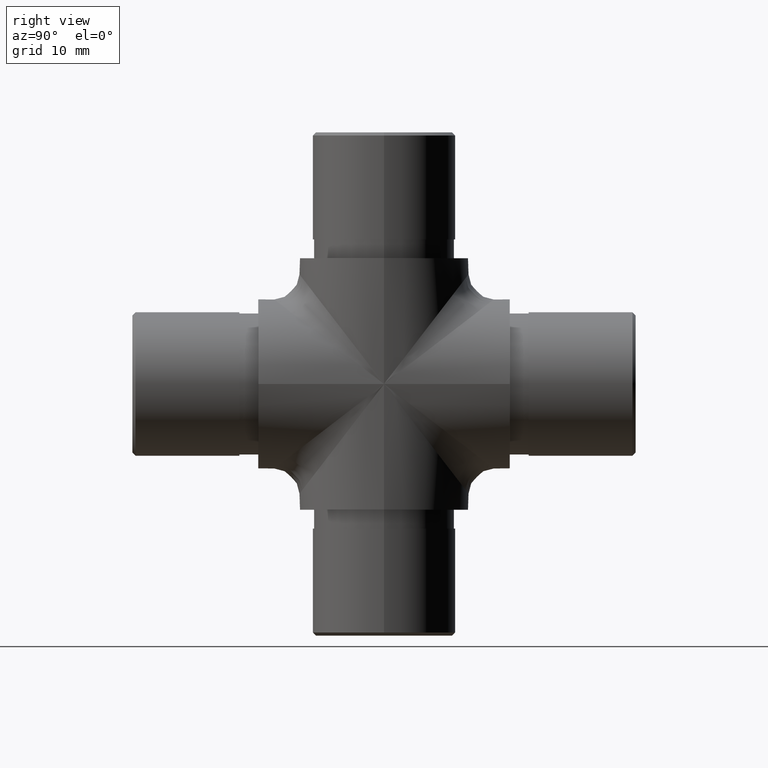
[diagram: clean part render]
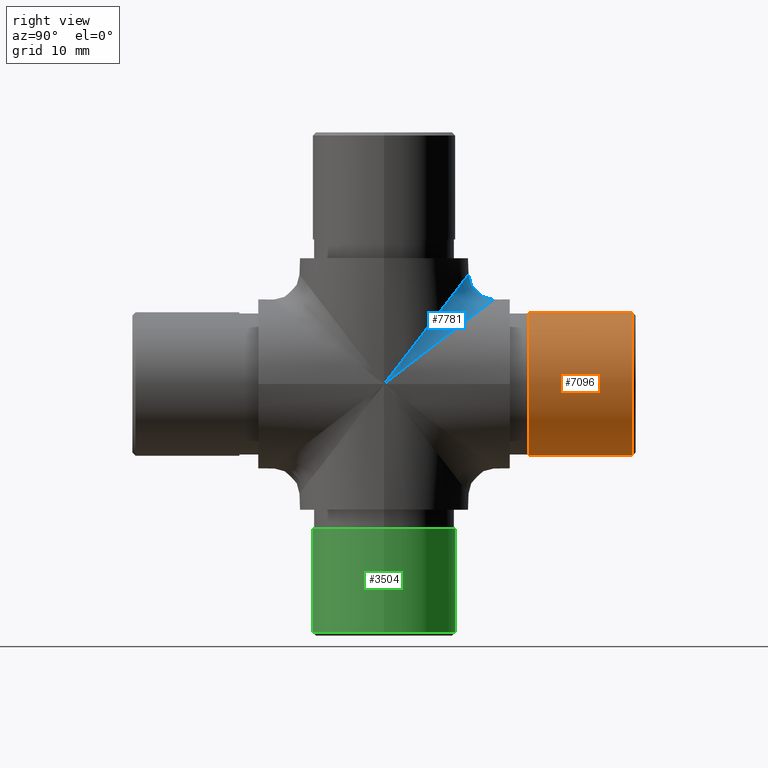
[diagram: same view with three faces highlighted in distinct colors, each labeled with its STEP entity id]
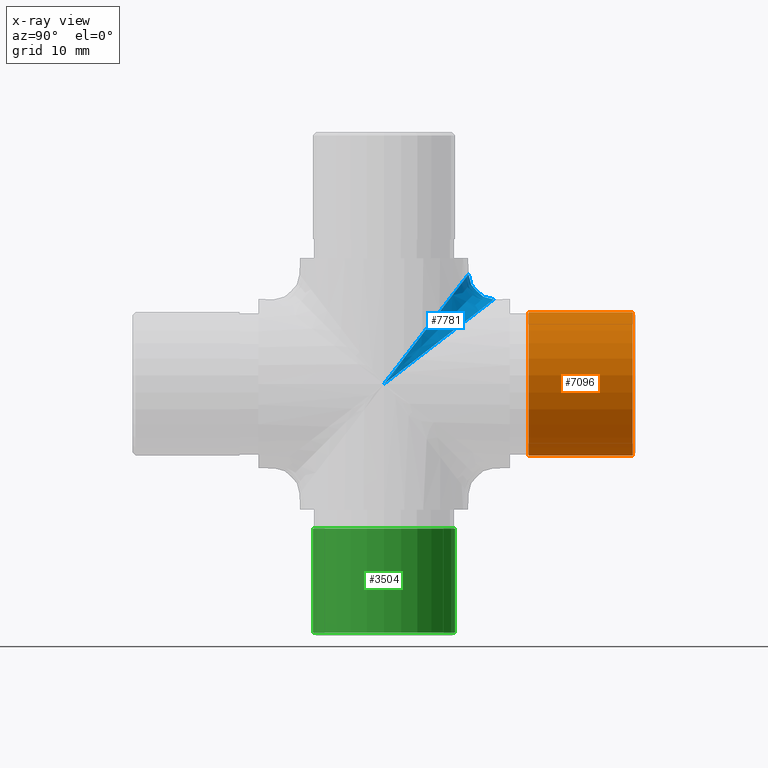
[diagram: x-ray of the same camera — body ghosted, the three highlighted faces saturated]
A machine part, right view with three faces highlighted in distinct colors.
The next image is the same camera in x-ray (body ghosted, the three faces saturated) — at least one of them is partly hidden behind the body in this view.
Their STEP definitions:

[orange] entity #7096 — the highlighted cylindrical surface (bore or boss wall) has radius 11.4 mm, axis along (-0, -1, -0).
#493 = VERTEX_POINT ( 'NONE', #5746 ) ;
#675 = CARTESIAN_POINT ( 'NONE',  ( 0.0000000000000000000, 23.00000000000000000, 11.40000000000000000 ) ) ;
#1347 = CARTESIAN_POINT ( 'NONE',  ( 0.0000000000000000000, 23.00000000000000000, 0.0000000000000000000 ) ) ;
#1759 = VERTEX_POINT ( 'NONE', #675 ) ;
#2105 = ORIENTED_EDGE ( 'NONE', *, *, #2292, .T. ) ;
#2292 = EDGE_CURVE ( 'NONE', #1759, #1759, #8737, .T. ) ;
#3370 = DIRECTION ( 'NONE',  ( 0.0000000000000000000, -1.000000000000000000, 0.0000000000000000000 ) ) ;
#3734 = CYLINDRICAL_SURFACE ( 'NONE', #9342, 11.40000000000000000 ) ;
#3977 = AXIS2_PLACEMENT_3D ( 'NONE', #6436, #3370, #10337 ) ;
#4054 = EDGE_CURVE ( 'NONE', #493, #493, #9999, .T. ) ;
#4604 = DIRECTION ( 'NONE',  ( 0.0000000000000000000, 1.000000000000000000, 0.0000000000000000000 ) ) ;
#5114 = DIRECTION ( 'NONE',  ( 0.0000000000000000000, 0.0000000000000000000, -1.000000000000000000 ) ) ;
#5746 = CARTESIAN_POINT ( 'NONE',  ( 0.0000000000000000000, 39.49999999999999300, 11.40000000000000000 ) ) ;
#5907 = FACE_OUTER_BOUND ( 'NONE', #8009, .T. ) ;
#5974 = AXIS2_PLACEMENT_3D ( 'NONE', #1347, #4604, #10543 ) ;
#5988 = DIRECTION ( 'NONE',  ( -0.0000000000000000000, -1.000000000000000000, -0.0000000000000000000 ) ) ;
#6436 = CARTESIAN_POINT ( 'NONE',  ( 0.0000000000000000000, 39.49999999999999300, 0.0000000000000000000 ) ) ;
#7096 = ADVANCED_FACE ( 'NONE', ( #5907, #11395 ), #3734, .T. ) ;
#8009 = EDGE_LOOP ( 'NONE', ( #10779 ) ) ;
#8737 = CIRCLE ( 'NONE', #5974, 11.40000000000000000 ) ;
#9342 = AXIS2_PLACEMENT_3D ( 'NONE', #12919, #5988, #5114 ) ;
#9999 = CIRCLE ( 'NONE', #3977, 11.40000000000000000 ) ;
#10337 = DIRECTION ( 'NONE',  ( 0.0000000000000000000, 0.0000000000000000000, 1.000000000000000000 ) ) ;
#10543 = DIRECTION ( 'NONE',  ( 0.0000000000000000000, 0.0000000000000000000, 1.000000000000000000 ) ) ;
#10779 = ORIENTED_EDGE ( 'NONE', *, *, #4054, .T. ) ;
#10842 = EDGE_LOOP ( 'NONE', ( #2105 ) ) ;
#11395 = FACE_OUTER_BOUND ( 'NONE', #10842, .T. ) ;
#12919 = CARTESIAN_POINT ( 'NONE',  ( 0.0000000000000000000, 40.00000000000000000, 0.0000000000000000000 ) ) ;

[blue] entity #7781 — the highlighted face is a freeform B-spline surface patch.
#169 =( BOUNDED_CURVE ( )  B_SPLINE_CURVE ( 3, ( #7585, #12764, #12721, #10555 ),
 .UNSPECIFIED., .F., .F. ) 
 B_SPLINE_CURVE_WITH_KNOTS ( ( 4, 4 ),
 ( 1.570796326794896800, 4.712388980384689700 ),
 .UNSPECIFIED. ) 
 CURVE ( )  GEOMETRIC_REPRESENTATION_ITEM ( )  RATIONAL_B_SPLINE_CURVE ( ( 1.000000000000000000, 0.3333333333333333700, 0.3333333333333333700, 1.000000000000000000 ) ) 
 REPRESENTATION_ITEM ( '' )  );
#268 = EDGE_CURVE ( 'NONE', #12795, #6836, #169, .T. ) ;
#425 = CARTESIAN_POINT ( 'NONE',  ( -1.760579116241333300, 17.33751576638458000, 13.36330011793112900 ) ) ;
#565 = CARTESIAN_POINT ( 'NONE',  ( -13.44999999999999800, 1.142112784787350000, 0.8803104272429715900 ) ) ;
#610 = CARTESIAN_POINT ( 'NONE',  ( -7.826289490386007400, 11.06871699549510200, 11.06871699549510200 ) ) ;
#829 = CARTESIAN_POINT ( 'NONE',  ( 2.554661403383129900, 13.25396271894051900, 13.25396271894051900 ) ) ;
#867 = CARTESIAN_POINT ( 'NONE',  ( 8.204362700591183000, 10.69419756427579500, 13.87462806666295900 ) ) ;
#905 = CARTESIAN_POINT ( 'NONE',  ( 4.333800605359729600, 16.55876052488354200, 12.76305610657196100 ) ) ;
#931 = CARTESIAN_POINT ( 'NONE',  ( -13.44999999999999000, 26.90000000000000900, 34.89999999999998400 ) ) ;
#949 = CARTESIAN_POINT ( 'NONE',  ( 12.76305610663356700, 4.333800605211020100, 5.622663238732033400 ) ) ;
#998 = CARTESIAN_POINT ( 'NONE',  ( 3.251151502456236700, 13.12231531941097300, 13.12231531941097300 ) ) ;
#1449 = CARTESIAN_POINT ( 'NONE',  ( -0.6185010550564746800, 13.44999999999999800, 13.44999999999999800 ) ) ;
#1495 = CARTESIAN_POINT ( 'NONE',  ( -0.8803004409928059100, 13.44999999999999800, 17.44999999999999600 ) ) ;
#1536 = CARTESIAN_POINT ( 'NONE',  ( -1.760579116241333300, 13.36330011793112900, 17.33751576638458000 ) ) ;
#1576 = CARTESIAN_POINT ( 'NONE',  ( -13.44999999999999800, -8.235749724265947000E-016, -1.068504332256065400E-015 ) ) ;
#1864 = CARTESIAN_POINT ( 'NONE',  ( 10.13305261837929700, 11.53142679792897100, 8.888119795538825600 ) ) ;
#1908 = CARTESIAN_POINT ( 'NONE',  ( 13.33585166001859300, 2.028616801334055100, 2.028616801334055100 ) ) ;
#1993 = CARTESIAN_POINT ( 'NONE',  ( 13.01982392487296800, 3.487350546207652200, 4.524480820172141400 ) ) ;
#2426 = CARTESIAN_POINT ( 'NONE',  ( -8.204362700590154500, 13.87462806666521000, 10.69419756427648400 ) ) ;
#2459 = CARTESIAN_POINT ( 'NONE',  ( 13.45000000000000100, 0.0000000000000000000, 0.0000000000000000000 ) ) ;
#2471 = CARTESIAN_POINT ( 'NONE',  ( -9.962209205126949700, 9.168816684697246100, 9.168816684697246100 ) ) ;
#2564 = CARTESIAN_POINT ( 'NONE',  ( -12.89222839911110800, 3.997100754241533300, 3.997100754241533300 ) ) ;
#2608 = CARTESIAN_POINT ( 'NONE',  ( -5.960383725261179300, 12.08930331798164200, 15.68463515976036000 ) ) ;
#2823 = CARTESIAN_POINT ( 'NONE',  ( 6.740476567636093800, 11.67233500666267400, 15.14366140269588000 ) ) ;
#2927 = CARTESIAN_POINT ( 'NONE',  ( -13.45000000000000100, 0.0000000000000000000, 0.0000000000000000000 ) ) ;
#2941 = CARTESIAN_POINT ( 'NONE',  ( 1.231024211893977400, 13.41883242087744700, 13.41883242087744700 ) ) ;
#2989 = CARTESIAN_POINT ( 'NONE',  ( 13.44999999999999800, 0.8803104272436990100, 1.142112784788293700 ) ) ;
#3274 =( BOUNDED_SURFACE ( )  B_SPLINE_SURFACE ( 3, 2, ( 
 ( #5430, #6476, #1576 ),
 ( #565, #7544, #7591 ),
 ( #5566, #3577, #8417 ),
 ( #8545, #2564, #10380 ),
 ( #4410, #12602, #8460 ),
 ( #10516, #12559, #12475 ),
 ( #4487, #8509, #9411 ),
 ( #4526, #2471, #7498 ),
 ( #12428, #9541, #4576 ),
 ( #5524, #610, #11397 ),
 ( #2426, #11574, #7449 ),
 ( #8592, #5390, #3448 ),
 ( #6516, #10427, #2608 ),
 ( #10467, #9590, #6390 ),
 ( #4451, #5476, #12514 ),
 ( #425, #11533, #1536 ),
 ( #7407, #1449, #1495 ),
 ( #6434, #11486, #9451 ),
 ( #3496, #2941, #8883 ),
 ( #7928, #829, #9878 ),
 ( #905, #998, #4622 ),
 ( #10603, #8810, #4953 ),
 ( #6907, #12978, #2823 ),
 ( #10865, #4916, #867 ),
 ( #7974, #12850, #9800 ),
 ( #1864, #3836, #6816 ),
 ( #12640, #8927, #11625 ),
 ( #5608, #11927, #7848 ),
 ( #5956, #10821, #4832 ),
 ( #7807, #9922, #949 ),
 ( #4869, #6950, #1993 ),
 ( #7883, #1908, #8975 ),
 ( #5911, #5823, #2989 ),
 ( #11883, #6777, #3624 ) ),
 .UNSPECIFIED., .F., .F., .T. ) 
 B_SPLINE_SURFACE_WITH_KNOTS ( ( 4, 2, 2, 2, 2, 2, 2, 2, 2, 2, 2, 2, 2, 2, 2, 2, 4 ),
 ( 3, 3 ),
 ( 1.570796326794896600, 1.767145867644258600, 1.963495408493620700, 2.159844949342982500, 2.356194490192344800, 2.552544031041707100, 2.748893571891069000, 2.945243112740430800, 3.141592653589793100, 3.337942194439155400, 3.534291735288517300, 3.730641276137879100, 3.926990816987241400, 4.123340357836603700, 4.319689898685965100, 4.516039439535327400, 4.712388980384689700 ),
 ( 0.0000000000000000000, 1.000000000000000000 ),
 .UNSPECIFIED. ) 
 GEOMETRIC_REPRESENTATION_ITEM ( )  RATIONAL_B_SPLINE_SURFACE ( (
 ( 1.000000000000000000, 1.000000000000000000, 1.000000000000000000),
 ( 1.000000000000000000, 1.000009746410218200, 1.000000000000000000),
 ( 1.000000000000000000, 0.9967613244613894300, 1.000000000000000000),
 ( 1.000000000000000000, 0.9841171504863514000, 1.000000000000000000),
 ( 1.000000000000000000, 0.9747108043652756800, 1.000000000000000000),
 ( 1.000000000000000000, 0.9506740353970371000, 1.000000000000000000),
 ( 1.000000000000000000, 0.9360421842734941700, 1.000000000000000000),
 ( 1.000000000000000000, 0.9031650994129020200, 1.000000000000000000),
 ( 1.000000000000000000, 0.8849191471365555100, 1.000000000000000000),
 ( 1.000000000000000000, 0.8471316604323212400, 1.000000000000000000),
 ( 1.000000000000000000, 0.8275942695996153500, 1.000000000000000000),
 ( 1.000000000000000000, 0.7902180086437263800, 1.000000000000000000),
 ( 1.000000000000000000, 0.7723968218214872800, 1.000000000000000000),
 ( 1.000000000000000000, 0.7418334178757176600, 1.000000000000000000),
 ( 1.000000000000000000, 0.7291288940217117700, 1.000000000000000000),
 ( 1.000000000000000000, 0.7117460025216049100, 1.000000000000000000),
 ( 1.000000000000000000, 0.7071067811865475700, 1.000000000000000000),
 ( 1.000000000000000000, 0.7071067811865475700, 1.000000000000000000),
 ( 1.000000000000000000, 0.7117460025216694200, 1.000000000000000000),
 ( 1.000000000000000000, 0.7291288940216470400, 1.000000000000000000),
 ( 1.000000000000000000, 0.7418334178756490500, 1.000000000000000000),
 ( 1.000000000000000000, 0.7723968218215543400, 1.000000000000000000),
 ( 1.000000000000000000, 0.7902180086437260400, 1.000000000000000000),
 ( 1.000000000000000000, 0.8275942695996150200, 1.000000000000000000),
 ( 1.000000000000000000, 0.8471316604322441900, 1.000000000000000000),
 ( 1.000000000000000000, 0.8849191471366336700, 1.000000000000000000),
 ( 1.000000000000000000, 0.9031650994129008000, 1.000000000000000000),
 ( 1.000000000000000000, 0.9360421842734943900, 1.000000000000000000),
 ( 1.000000000000000000, 0.9506740353970140100, 1.000000000000000000),
 ( 1.000000000000000000, 0.9747108043652983300, 1.000000000000000000),
 ( 1.000000000000000000, 0.9841171504863854800, 1.000000000000000000),
 ( 1.000000000000000000, 0.9967613244613549000, 1.000000000000000000),
 ( 1.000000000000000000, 1.000009746410244000, 1.000000000000000000),
 ( 1.000000000000000000, 1.000000000000000000, 1.000000000000000000) ) ) 
 REPRESENTATION_ITEM ( '' )  SURFACE ( )  );
#3365 = ORIENTED_EDGE ( 'NONE', *, *, #268, .F. ) ;
#3448 = CARTESIAN_POINT ( 'NONE',  ( -6.740476567637159600, 11.67233500666196700, 15.14366140269359600 ) ) ;
#3496 = CARTESIAN_POINT ( 'NONE',  ( 1.760579116241411900, 17.33751576638660900, 13.36330011793111400 ) ) ;
#3577 = CARTESIAN_POINT ( 'NONE',  ( -13.33585166001152800, 2.028616801334266500, 2.028616801334266500 ) ) ;
#3624 = CARTESIAN_POINT ( 'NONE',  ( 13.44999999999999800, 2.470724917279784300E-015, 3.205512996768196000E-015 ) ) ;
#3836 = CARTESIAN_POINT ( 'NONE',  ( 9.277602110786826700, 9.864348740865430900, 9.864348740865430900 ) ) ;
#4185 = FACE_OUTER_BOUND ( 'NONE', #11258, .T. ) ;
#4410 = CARTESIAN_POINT ( 'NONE',  ( -12.76305610663328200, 5.622663238731845100, 4.333800605211698600 ) ) ;
#4451 = CARTESIAN_POINT ( 'NONE',  ( -3.487350545992534000, 16.89189051968815000, 13.01982392491575900 ) ) ;
#4487 = CARTESIAN_POINT ( 'NONE',  ( -11.67233500670748300, 8.745079264242891200, 6.740476567569037200 ) ) ;
#4526 = CARTESIAN_POINT ( 'NONE',  ( -10.69419756423098800, 10.64432186814120500, 8.204362700658244000 ) ) ;
#4576 = CARTESIAN_POINT ( 'NONE',  ( -10.13305261837928700, 8.888119795538841600, 11.53142679792899000 ) ) ;
#4622 = CARTESIAN_POINT ( 'NONE',  ( 4.333800605359729600, 12.76305610657196100, 16.55876052488354200 ) ) ;
#4832 = CARTESIAN_POINT ( 'NONE',  ( 12.08930331792002900, 5.960383725409925200, 7.732988550809640300 ) ) ;
#4869 = CARTESIAN_POINT ( 'NONE',  ( 13.01982392487296800, 4.524480820172141400, 3.487350546207652200 ) ) ;
#4916 = CARTESIAN_POINT ( 'NONE',  ( 7.054827041782868200, 11.57092578936800300, 11.57092578936800300 ) ) ;
#4953 = CARTESIAN_POINT ( 'NONE',  ( 5.960383725261143800, 12.08930331798165800, 15.68463515976037700 ) ) ;
#5390 = CARTESIAN_POINT ( 'NONE',  ( -5.506249729540424900, 12.38324776086609100, 12.38324776086609100 ) ) ;
#5430 = CARTESIAN_POINT ( 'NONE',  ( -13.44999999999999800, -1.068504332256065400E-015, -8.235749724265947000E-016 ) ) ;
#5476 = CARTESIAN_POINT ( 'NONE',  ( -2.554661403383834600, 13.25396271894251900, 13.25396271894251900 ) ) ;
#5524 = CARTESIAN_POINT ( 'NONE',  ( -8.888119795538823800, 13.14659986548153700, 10.13305261837930100 ) ) ;
#5566 = CARTESIAN_POINT ( 'NONE',  ( -13.36330011797364200, 2.284171418191602900, 1.760579116027585000 ) ) ;
#5608 = CARTESIAN_POINT ( 'NONE',  ( 11.67233500670862900, 8.745079264242363600, 6.740476567567323100 ) ) ;
#5823 = CARTESIAN_POINT ( 'NONE',  ( 13.44999999999859400, 1.011202245689638300, 1.011202245689638300 ) ) ;
#5911 = CARTESIAN_POINT ( 'NONE',  ( 13.44999999999999800, 1.142112784788293700, 0.8803104272436990100 ) ) ;
#5956 = CARTESIAN_POINT ( 'NONE',  ( 12.08930331792002900, 7.732988550809640300, 5.960383725409925200 ) ) ;
#6390 = CARTESIAN_POINT ( 'NONE',  ( -4.333800605359766900, 12.76305610657195200, 16.55876052488352500 ) ) ;
#6434 = CARTESIAN_POINT ( 'NONE',  ( 0.8803004409928265600, 17.44999999999999600, 13.44999999999999800 ) ) ;
#6476 = CARTESIAN_POINT ( 'NONE',  ( -13.44999999999999800, -9.460396523413300500E-016, -9.460396523413300500E-016 ) ) ;
#6516 = CARTESIAN_POINT ( 'NONE',  ( -5.960383725261179300, 15.68463515976036000, 12.08930331798164200 ) ) ;
#6777 = CARTESIAN_POINT ( 'NONE',  ( 13.44999999999999800, 2.838118957023990100E-015, 2.838118957023990100E-015 ) ) ;
#6816 = CARTESIAN_POINT ( 'NONE',  ( 10.13305261837929700, 8.888119795538825600, 11.53142679792897100 ) ) ;
#6836 = VERTEX_POINT ( 'NONE', #2459 ) ;
#6907 = CARTESIAN_POINT ( 'NONE',  ( 6.740476567636093800, 15.14366140269588000, 11.67233500666267400 ) ) ;
#6950 = CARTESIAN_POINT ( 'NONE',  ( 12.89222839910393100, 3.997100754241738900, 3.997100754241738900 ) ) ;
#7330 = CARTESIAN_POINT ( 'NONE',  ( -13.45000000000000100, 0.0000000000000000000, 0.0000000000000000000 ) ) ;
#7407 = CARTESIAN_POINT ( 'NONE',  ( -0.8803004409928059100, 17.44999999999999600, 13.44999999999999800 ) ) ;
#7449 = CARTESIAN_POINT ( 'NONE',  ( -8.204362700590154500, 10.69419756427648400, 13.87462806666521000 ) ) ;
#7498 = CARTESIAN_POINT ( 'NONE',  ( -10.69419756423098800, 8.204362700658244000, 10.64432186814120500 ) ) ;
#7544 = CARTESIAN_POINT ( 'NONE',  ( -13.44999999999859600, 1.011202245689473100, 1.011202245689473100 ) ) ;
#7585 = CARTESIAN_POINT ( 'NONE',  ( -13.45000000000000100, 0.0000000000000000000, 0.0000000000000000000 ) ) ;
#7591 = CARTESIAN_POINT ( 'NONE',  ( -13.44999999999999800, 0.8803104272429715900, 1.142112784787350000 ) ) ;
#7781 = ADVANCED_FACE ( 'NONE', ( #4185 ), #3274, .F. ) ;
#7807 = CARTESIAN_POINT ( 'NONE',  ( 12.76305610663356700, 5.622663238732033400, 4.333800605211020100 ) ) ;
#7848 = CARTESIAN_POINT ( 'NONE',  ( 11.67233500670862900, 6.740476567567323100, 8.745079264242363600 ) ) ;
#7883 = CARTESIAN_POINT ( 'NONE',  ( 13.36330011797391600, 2.284171418190777700, 1.760579116026230300 ) ) ;
#7928 = CARTESIAN_POINT ( 'NONE',  ( 3.487350545992414600, 16.89189051968613600, 13.01982392491578500 ) ) ;
#7974 = CARTESIAN_POINT ( 'NONE',  ( 8.888119795538838000, 13.14659986548151800, 10.13305261837928500 ) ) ;
#8417 = CARTESIAN_POINT ( 'NONE',  ( -13.36330011797364200, 1.760579116027585400, 2.284171418191602900 ) ) ;
#8460 = CARTESIAN_POINT ( 'NONE',  ( -12.76305610663328200, 4.333800605211698600, 5.622663238731845100 ) ) ;
#8509 = CARTESIAN_POINT ( 'NONE',  ( -11.16885367848228600, 7.620430911807797100, 7.620430911807797100 ) ) ;
#8545 = CARTESIAN_POINT ( 'NONE',  ( -13.01982392487325100, 4.524480820171247000, 3.487350546206243500 ) ) ;
#8592 = CARTESIAN_POINT ( 'NONE',  ( -6.740476567637159600, 15.14366140269359600, 11.67233500666196700 ) ) ;
#8810 = CARTESIAN_POINT ( 'NONE',  ( 4.733780939929412000, 12.68303839724656600, 12.68303839724656600 ) ) ;
#8883 = CARTESIAN_POINT ( 'NONE',  ( 1.760579116241412200, 13.36330011793111400, 17.33751576638660900 ) ) ;
#8927 = CARTESIAN_POINT ( 'NONE',  ( 9.962209205123373900, 9.168816684697338500, 9.168816684697338500 ) ) ;
#8962 = CARTESIAN_POINT ( 'NONE',  ( 13.45000000000000100, 0.0000000000000000000, 0.0000000000000000000 ) ) ;
#8975 = CARTESIAN_POINT ( 'NONE',  ( 13.36330011797391600, 1.760579116026230300, 2.284171418190777700 ) ) ;
#8993 = ORIENTED_EDGE ( 'NONE', *, *, #11592, .F. ) ;
#9411 = CARTESIAN_POINT ( 'NONE',  ( -11.67233500670748300, 6.740476567569037200, 8.745079264242891200 ) ) ;
#9451 = CARTESIAN_POINT ( 'NONE',  ( 0.8803004409928265600, 13.44999999999999800, 17.44999999999999600 ) ) ;
#9511 =( BOUNDED_CURVE ( )  B_SPLINE_CURVE ( 3, ( #8962, #10936, #931, #2927 ),
 .UNSPECIFIED., .F., .T. ) 
 B_SPLINE_CURVE_WITH_KNOTS ( ( 4, 4 ),
 ( 1.570796326794896600, 4.712388980384689700 ),
 .UNSPECIFIED. ) 
 CURVE ( )  GEOMETRIC_REPRESENTATION_ITEM ( )  RATIONAL_B_SPLINE_CURVE ( ( 1.000000000000000000, 0.3333333333333333700, 0.3333333333333333700, 1.000000000000000000 ) ) 
 REPRESENTATION_ITEM ( '' )  );
#9541 = CARTESIAN_POINT ( 'NONE',  ( -9.277602110783314900, 9.864348740864208800, 9.864348740864208800 ) ) ;
#9590 = CARTESIAN_POINT ( 'NONE',  ( -3.251151502455798400, 13.12231531941202800, 13.12231531941202800 ) ) ;
#9800 = CARTESIAN_POINT ( 'NONE',  ( 8.888119795538838000, 10.13305261837928500, 13.14659986548151800 ) ) ;
#9878 = CARTESIAN_POINT ( 'NONE',  ( 3.487350545992414600, 13.01982392491578500, 16.89189051968613600 ) ) ;
#9922 = CARTESIAN_POINT ( 'NONE',  ( 12.55744004400008700, 4.959083210621108700, 4.959083210621108700 ) ) ;
#10380 = CARTESIAN_POINT ( 'NONE',  ( -13.01982392487325100, 3.487350546206243100, 4.524480820171247000 ) ) ;
#10427 = CARTESIAN_POINT ( 'NONE',  ( -4.733780939930030100, 12.68303839724550400, 12.68303839724550400 ) ) ;
#10467 = CARTESIAN_POINT ( 'NONE',  ( -4.333800605359766900, 16.55876052488352500, 12.76305610657195200 ) ) ;
#10516 = CARTESIAN_POINT ( 'NONE',  ( -12.08930331792032200, 7.732988550809795700, 5.960383725409220900 ) ) ;
#10555 = CARTESIAN_POINT ( 'NONE',  ( 13.45000000000000100, 0.0000000000000000000, 0.0000000000000000000 ) ) ;
#10603 = CARTESIAN_POINT ( 'NONE',  ( 5.960383725261143800, 15.68463515976037700, 12.08930331798165800 ) ) ;
#10821 = CARTESIAN_POINT ( 'NONE',  ( 11.70026303290024600, 6.767469909088373600, 6.767469909088373600 ) ) ;
#10865 = CARTESIAN_POINT ( 'NONE',  ( 8.204362700591183000, 13.87462806666295900, 10.69419756427579500 ) ) ;
#10936 = CARTESIAN_POINT ( 'NONE',  ( 13.44999999999999900, 26.89999999999999900, 34.89999999999998400 ) ) ;
#11258 = EDGE_LOOP ( 'NONE', ( #8993, #3365 ) ) ;
#11397 = CARTESIAN_POINT ( 'NONE',  ( -8.888119795538823800, 10.13305261837930100, 13.14659986548153700 ) ) ;
#11486 = CARTESIAN_POINT ( 'NONE',  ( 0.6185010550564892200, 13.44999999999999800, 13.44999999999999800 ) ) ;
#11533 = CARTESIAN_POINT ( 'NONE',  ( -1.231024211893166500, 13.41883242087540800, 13.41883242087540800 ) ) ;
#11574 = CARTESIAN_POINT ( 'NONE',  ( -7.054827041781226000, 11.57092578937021100, 11.57092578937021100 ) ) ;
#11592 = EDGE_CURVE ( 'NONE', #6836, #12795, #9511, .T. ) ;
#11625 = CARTESIAN_POINT ( 'NONE',  ( 10.69419756422981700, 8.204362700659993700, 10.64432186814177700 ) ) ;
#11883 = CARTESIAN_POINT ( 'NONE',  ( 13.44999999999999800, 3.205512996768196000E-015, 2.470724917279784300E-015 ) ) ;
#11927 = CARTESIAN_POINT ( 'NONE',  ( 11.16885367848571200, 7.620430911807750000, 7.620430911807750000 ) ) ;
#12428 = CARTESIAN_POINT ( 'NONE',  ( -10.13305261837928700, 11.53142679792899000, 8.888119795538841600 ) ) ;
#12475 = CARTESIAN_POINT ( 'NONE',  ( -12.08930331792032200, 5.960383725409220900, 7.732988550809795700 ) ) ;
#12514 = CARTESIAN_POINT ( 'NONE',  ( -3.487350545992534000, 13.01982392491575900, 16.89189051968815000 ) ) ;
#12559 = CARTESIAN_POINT ( 'NONE',  ( -11.70026303290070600, 6.767469909088388700, 6.767469909088388700 ) ) ;
#12602 = CARTESIAN_POINT ( 'NONE',  ( -12.55744004399967300, 4.959083210621025200, 4.959083210621025200 ) ) ;
#12640 = CARTESIAN_POINT ( 'NONE',  ( 10.69419756422981700, 10.64432186814177700, 8.204362700659993700 ) ) ;
#12721 = CARTESIAN_POINT ( 'NONE',  ( 13.44999999999999000, 34.89999999999998400, 26.90000000000000900 ) ) ;
#12764 = CARTESIAN_POINT ( 'NONE',  ( -13.44999999999999400, 34.89999999999998400, 26.90000000000000900 ) ) ;
#12795 = VERTEX_POINT ( 'NONE', #7330 ) ;
#12850 = CARTESIAN_POINT ( 'NONE',  ( 7.826289490382230900, 11.06871699549390400, 11.06871699549390400 ) ) ;
#12978 = CARTESIAN_POINT ( 'NONE',  ( 5.506249729538666300, 12.38324776086841800, 12.38324776086841800 ) ) ;

[green] entity #3504 — the highlighted cylindrical surface (bore or boss wall) has radius 11.4 mm, axis along (-0, -0, 1).
#640 = AXIS2_PLACEMENT_3D ( 'NONE', #2233, #10212, #3050 ) ;
#1017 = ORIENTED_EDGE ( 'NONE', *, *, #5781, .F. ) ;
#1166 = AXIS2_PLACEMENT_3D ( 'NONE', #12402, #6360, #4500 ) ;
#2233 = CARTESIAN_POINT ( 'NONE',  ( 0.0000000000000000000, 0.0000000000000000000, -39.49999999999997900 ) ) ;
#2790 = CARTESIAN_POINT ( 'NONE',  ( -11.40000000000000000, 0.0000000000000000000, -39.49999999999997900 ) ) ;
#2948 = CARTESIAN_POINT ( 'NONE',  ( 11.40000000000000000, 0.0000000000000000000, -23.00000000000000000 ) ) ;
#3050 = DIRECTION ( 'NONE',  ( -1.000000000000000000, 0.0000000000000000000, 0.0000000000000000000 ) ) ;
#3460 = VERTEX_POINT ( 'NONE', #2948 ) ;
#3504 = ADVANCED_FACE ( 'NONE', ( #11478, #9986 ), #11277, .T. ) ;
#3607 = CARTESIAN_POINT ( 'NONE',  ( 0.0000000000000000000, 0.0000000000000000000, -40.00000000000000000 ) ) ;
#3900 = CIRCLE ( 'NONE', #640, 11.40000000000000000 ) ;
#4500 = DIRECTION ( 'NONE',  ( 1.000000000000000000, 0.0000000000000000000, 0.0000000000000000000 ) ) ;
#4709 = ORIENTED_EDGE ( 'NONE', *, *, #4778, .T. ) ;
#4778 = EDGE_CURVE ( 'NONE', #5772, #5772, #3900, .T. ) ;
#4813 = AXIS2_PLACEMENT_3D ( 'NONE', #3607, #6543, #10412 ) ;
#5772 = VERTEX_POINT ( 'NONE', #2790 ) ;
#5781 = EDGE_CURVE ( 'NONE', #3460, #3460, #9818, .T. ) ;
#6360 = DIRECTION ( 'NONE',  ( -0.0000000000000000000, -0.0000000000000000000, 1.000000000000000000 ) ) ;
#6543 = DIRECTION ( 'NONE',  ( -0.0000000000000000000, -0.0000000000000000000, 1.000000000000000000 ) ) ;
#7375 = EDGE_LOOP ( 'NONE', ( #4709 ) ) ;
#7863 = EDGE_LOOP ( 'NONE', ( #1017 ) ) ;
#9818 = CIRCLE ( 'NONE', #1166, 11.40000000000000000 ) ;
#9986 = FACE_OUTER_BOUND ( 'NONE', #7863, .T. ) ;
#10212 = DIRECTION ( 'NONE',  ( -0.0000000000000000000, -0.0000000000000000000, 1.000000000000000000 ) ) ;
#10412 = DIRECTION ( 'NONE',  ( 1.000000000000000000, 0.0000000000000000000, 0.0000000000000000000 ) ) ;
#11277 = CYLINDRICAL_SURFACE ( 'NONE', #4813, 11.40000000000000000 ) ;
#11478 = FACE_OUTER_BOUND ( 'NONE', #7375, .T. ) ;
#12402 = CARTESIAN_POINT ( 'NONE',  ( 0.0000000000000000000, 0.0000000000000000000, -23.00000000000000000 ) ) ;